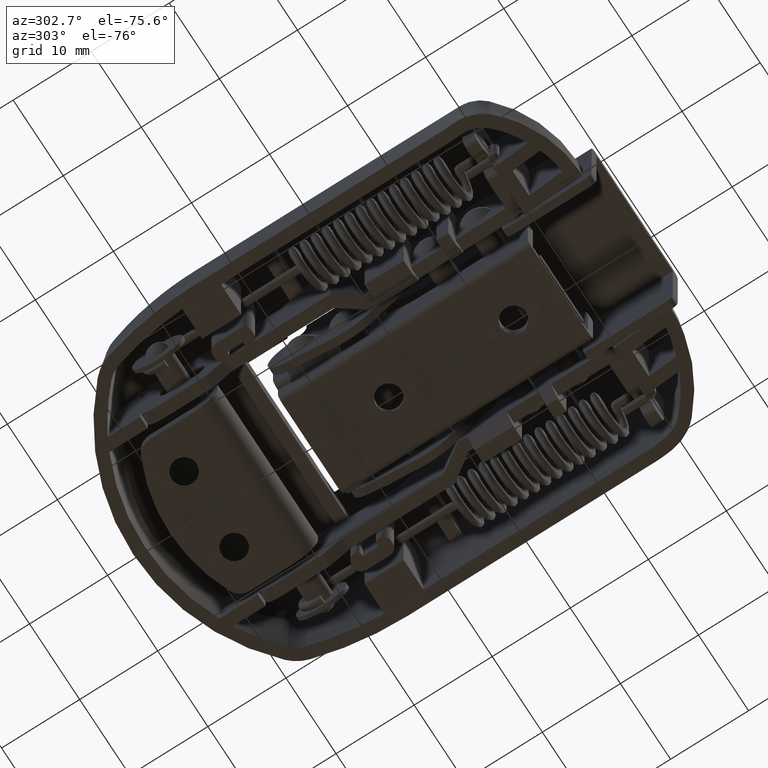
[diagram: clean part render]
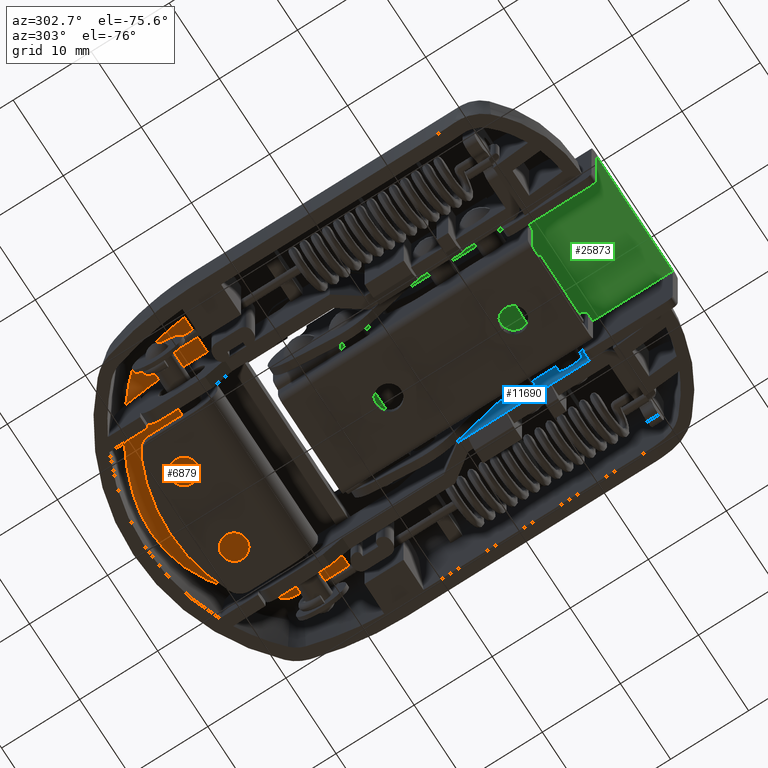
[diagram: same view with three faces highlighted in distinct colors, each labeled with its STEP entity id]
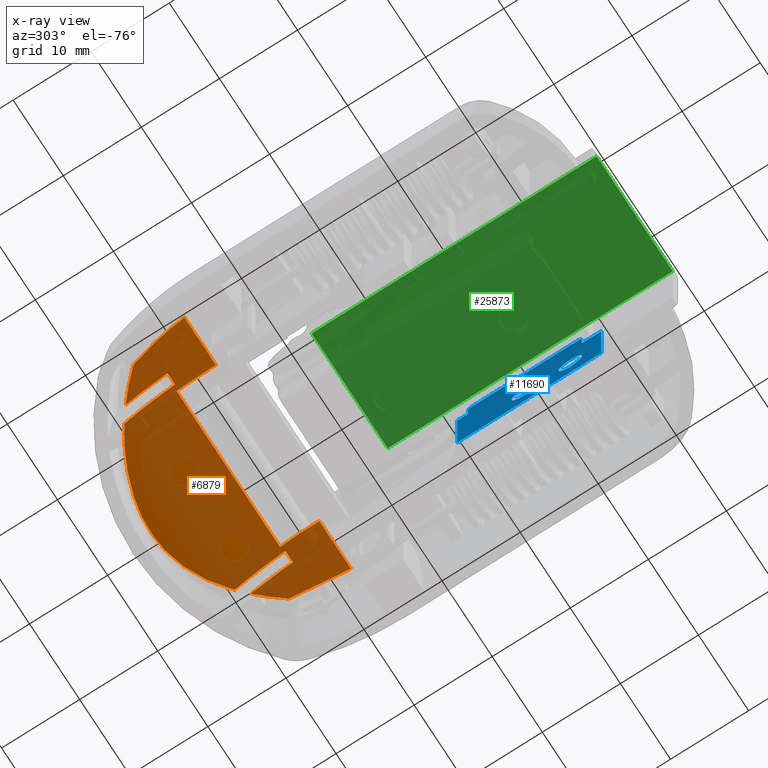
[diagram: x-ray of the same camera — body ghosted, the three highlighted faces saturated]
A machine part, auxiliary view with three faces highlighted in distinct colors.
The next image is the same camera in x-ray (body ghosted, the three faces saturated) — at least one of them is partly hidden behind the body in this view.
Their STEP definitions:

[orange] entity #6879 — the highlighted cylindrical surface (partial cylindrical patch) has radius 18.5 mm, axis along (1, 0, 0).
#43 = CARTESIAN_POINT ( 'NONE',  ( -15.48280324670634100, 52.19067634615449000, -2.954387487245519600 ) ) ;
#245 = CARTESIAN_POINT ( 'NONE',  ( -16.61382878402735800, 45.00000000000000000, -1.500000000000001300 ) ) ;
#286 = CARTESIAN_POINT ( 'NONE',  ( 15.50160346016275300, 52.10439492127594000, -2.918502032826612700 ) ) ;
#287 = CARTESIAN_POINT ( 'NONE',  ( 0.5218743642224695800, 59.91816782484296800, -9.059311748555972000 ) ) ;
#353 = CIRCLE ( 'NONE', #6522, 18.50000000000000400 ) ;
#375 = CARTESIAN_POINT ( 'NONE',  ( -10.61306972115204600, 56.56884765888347700, -5.559508198463396100 ) ) ;
#561 = CARTESIAN_POINT ( 'NONE',  ( 13.52146566679425100, 54.31457960188673400, -3.984106299900881200 ) ) ;
#688 = B_SPLINE_CURVE_WITH_KNOTS ( 'NONE', 3,
 ( #4687, #14949, #561, #19092 ),
 .UNSPECIFIED., .F., .F.,
 ( 4, 4 ),
 ( 0.0000000000000000000, 0.004305898573004983600 ),
 .UNSPECIFIED. ) ;
#744 = CARTESIAN_POINT ( 'NONE',  ( 16.61382878402736200, 45.00000000000000000, -1.500000000000000000 ) ) ;
#1071 = AXIS2_PLACEMENT_3D ( 'NONE', #5561, #19985, #7619 ) ;
#1116 = ORIENTED_EDGE ( 'NONE', *, *, #18704, .T. ) ;
#1175 = CARTESIAN_POINT ( 'NONE',  ( -16.34124918041566900, 47.44337918842829500, -1.622279219142416200 ) ) ;
#1430 = DIRECTION ( 'NONE',  ( -1.000000000000000000, 1.927470528863119300E-016, -0.0000000000000000000 ) ) ;
#2010 = CARTESIAN_POINT ( 'NONE',  ( -21.69859469030514300, 49.80000000000014600, -2.133550996350777500 ) ) ;
#2259 = CARTESIAN_POINT ( 'NONE',  ( 9.410819536039001700, 57.33364827151172000, -6.198167039632482800 ) ) ;
#2348 = CARTESIAN_POINT ( 'NONE',  ( -1.045571550634906100, 59.92387399416514900, -9.067114513104863600 ) ) ;
#2486 = CARTESIAN_POINT ( 'NONE',  ( -10.99999999999999800, 49.79999999999999700, -2.133550996234134800 ) ) ;
#2612 = VERTEX_POINT ( 'NONE', #22142 ) ;
#2667 = B_SPLINE_CURVE_WITH_KNOTS ( 'NONE', 3,
 ( #23728, #9327, #11396, #25800, #13481, #1175, #15570, #3218 ),
 .UNSPECIFIED., .F., .F.,
 ( 4, 2, 2, 4 ),
 ( 0.0000000000000000000, 0.001858279202516515300, 0.003716558405033030600, 0.007433116810066064600 ),
 .UNSPECIFIED. ) ;
#2690 = FACE_OUTER_BOUND ( 'NONE', #5735, .T. ) ;
#2812 = CARTESIAN_POINT ( 'NONE',  ( 16.33116339996229600, 47.45186659334620300, -1.652992071109625300 ) ) ;
#3047 = ORIENTED_EDGE ( 'NONE', *, *, #17260, .F. ) ;
#3218 = CARTESIAN_POINT ( 'NONE',  ( -16.61382878402735800, 45.00000000000000000, -1.500000000000001300 ) ) ;
#3343 = ORIENTED_EDGE ( 'NONE', *, *, #8225, .F. ) ;
#3486 = EDGE_CURVE ( 'NONE', #12678, #24626, #15723, .T. ) ;
#3918 = ORIENTED_EDGE ( 'NONE', *, *, #18017, .F. ) ;
#3954 = CARTESIAN_POINT ( 'NONE',  ( -10.30000000106163000, 50.04083326445142200, -2.200000000000000600 ) ) ;
#4130 = CARTESIAN_POINT ( 'NONE',  ( -10.99999999999999600, 45.00000000000000000, -20.00000000000000000 ) ) ;
#4215 = ORIENTED_EDGE ( 'NONE', *, *, #12643, .F. ) ;
#4339 = CARTESIAN_POINT ( 'NONE',  ( 6.865501225361795100, 58.58035950449384200, -7.427918869725302500 ) ) ;
#4425 = CARTESIAN_POINT ( 'NONE',  ( -3.561094337125323900, 59.56667057569549700, -8.594610733381530900 ) ) ;
#4479 = ORIENTED_EDGE ( 'NONE', *, *, #20792, .T. ) ;
#4502 = CARTESIAN_POINT ( 'NONE',  ( -21.69859469030516400, 45.00000000000000000, -20.00000000000000000 ) ) ;
#4616 = DIRECTION ( 'NONE',  ( 1.000000000000000000, -1.927470528863120800E-016, -0.0000000000000000000 ) ) ;
#4656 = VERTEX_POINT ( 'NONE', #5523 ) ;
#4687 = CARTESIAN_POINT ( 'NONE',  ( 15.38518019879834700, 52.34069583772122800, -3.018710749237492500 ) ) ;
#4868 = CARTESIAN_POINT ( 'NONE',  ( 15.96456692951254700, 49.82963295474715400, -2.100690314413993700 ) ) ;
#5003 = VERTEX_POINT ( 'NONE', #17595 ) ;
#5340 = ORIENTED_EDGE ( 'NONE', *, *, #7163, .F. ) ;
#5523 = CARTESIAN_POINT ( 'NONE',  ( 10.29999999898361700, 50.04083326427390000, -2.200000000000000200 ) ) ;
#5561 = CARTESIAN_POINT ( 'NONE',  ( 10.29999999898361900, 45.00000000000000000, -20.00000000000000000 ) ) ;
#5735 = EDGE_LOOP ( 'NONE', ( #4215, #5340, #3918, #1116, #4479, #6066, #14311, #10726, #6991, #10266, #7521, #7179, #22559, #14090, #20834, #3047, #3343, #17043 ) ) ;
#5866 = VERTEX_POINT ( 'NONE', #9737 ) ;
#6066 = ORIENTED_EDGE ( 'NONE', *, *, #3486, .T. ) ;
#6147 = DIRECTION ( 'NONE',  ( 1.875376730785737500E-016, -1.000000000000000000, -2.625527423100032400E-015 ) ) ;
#6174 = CARTESIAN_POINT ( 'NONE',  ( 12.49999999999999600, 55.15873950123441500, -4.538757755404659200 ) ) ;
#6364 = CARTESIAN_POINT ( 'NONE',  ( 5.022184936507113800, 59.20320717019114200, -8.144231551800402300 ) ) ;
#6376 = VERTEX_POINT ( 'NONE', #9295 ) ;
#6442 = CARTESIAN_POINT ( 'NONE',  ( -5.016437316797253100, 59.20479842558970100, -8.146160923343360900 ) ) ;
#6522 = AXIS2_PLACEMENT_3D ( 'NONE', #22146, #9792, #24182 ) ;
#6549 = CARTESIAN_POINT ( 'NONE',  ( -14.47763538749938700, 53.38229323440337000, -3.468973951370654300 ) ) ;
#6813 = VERTEX_POINT ( 'NONE', #286 ) ;
#6879 = ADVANCED_FACE ( 'NONE', ( #2690 ), #7482, .F. ) ;
#6907 = CARTESIAN_POINT ( 'NONE',  ( -21.69859469030516400, 45.00000000000000000, -1.500000000000001300 ) ) ;
#6911 = CARTESIAN_POINT ( 'NONE',  ( 15.50160346016275300, 52.10439492127594000, -2.918502032826612700 ) ) ;
#6919 = EDGE_CURVE ( 'NONE', #19215, #24626, #688, .T. ) ;
#6991 = ORIENTED_EDGE ( 'NONE', *, *, #15520, .F. ) ;
#7163 = EDGE_CURVE ( 'NONE', #2612, #22489, #19426, .T. ) ;
#7179 = ORIENTED_EDGE ( 'NONE', *, *, #7938, .F. ) ;
#7228 = VECTOR ( 'NONE', #20363, 1000.000000000000000 ) ;
#7263 = VERTEX_POINT ( 'NONE', #245 ) ;
#7482 = CYLINDRICAL_SURFACE ( 'NONE', #11329, 18.50000000000000000 ) ;
#7521 = ORIENTED_EDGE ( 'NONE', *, *, #11392, .F. ) ;
#7619 = DIRECTION ( 'NONE',  ( 1.875376730785737500E-016, -1.000000000000000000, -3.563215788492901300E-015 ) ) ;
#7730 = CARTESIAN_POINT ( 'NONE',  ( -15.38518019879834700, 52.34069583772122800, -3.018710749237492500 ) ) ;
#7855 = VERTEX_POINT ( 'NONE', #7730 ) ;
#7922 = DIRECTION ( 'NONE',  ( 1.000000000000000000, -3.368395098976692700E-016, 0.0000000000000000000 ) ) ;
#7937 = CARTESIAN_POINT ( 'NONE',  ( 15.38518019879834700, 52.34069583772122800, -3.018710749237492500 ) ) ;
#7938 = EDGE_CURVE ( 'NONE', #18319, #4656, #11384, .T. ) ;
#8033 = AXIS2_PLACEMENT_3D ( 'NONE', #4130, #18527, #6147 ) ;
#8197 = CARTESIAN_POINT ( 'NONE',  ( -15.38518019879834700, 52.34069583772122800, -3.018710749237492500 ) ) ;
#8225 = EDGE_CURVE ( 'NONE', #5003, #7855, #11590, .T. ) ;
#8429 = CARTESIAN_POINT ( 'NONE',  ( 3.567814254498795600, 59.56521249703881400, -8.592753154688132600 ) ) ;
#8531 = CARTESIAN_POINT ( 'NONE',  ( -6.852490527715947800, 58.58549006815795200, -7.433538217895243600 ) ) ;
#8894 = DIRECTION ( 'NONE',  ( 1.000000000000000000, -0.0000000000000000000, -0.0000000000000000000 ) ) ;
#9014 = EDGE_CURVE ( 'NONE', #6813, #19215, #24438, .T. ) ;
#9151 = VECTOR ( 'NONE', #8894, 1000.000000000000000 ) ;
#9295 = CARTESIAN_POINT ( 'NONE',  ( -15.50160346016276100, 52.10439492127591200, -2.918502032826602500 ) ) ;
#9327 = CARTESIAN_POINT ( 'NONE',  ( -15.62384221989275800, 51.54339414384628500, -2.685175243708799500 ) ) ;
#9737 = CARTESIAN_POINT ( 'NONE',  ( -10.30000000106163100, 45.00000000000000000, -1.500000000000001300 ) ) ;
#9792 = DIRECTION ( 'NONE',  ( -1.000000000000000000, -1.927470528863119300E-016, -0.0000000000000000000 ) ) ;
#10266 = ORIENTED_EDGE ( 'NONE', *, *, #14823, .F. ) ;
#10523 = CARTESIAN_POINT ( 'NONE',  ( 2.070999990632107000, 59.80853557934983700, -8.911123153178657200 ) ) ;
#10607 = CARTESIAN_POINT ( 'NONE',  ( -8.991241971607058400, 57.55097068750095000, -6.405358104243518400 ) ) ;
#10726 = ORIENTED_EDGE ( 'NONE', *, *, #9014, .F. ) ;
#11329 = AXIS2_PLACEMENT_3D ( 'NONE', #4502, #23027, #20962 ) ;
#11384 = LINE ( 'NONE', #20288, #26512 ) ;
#11392 = EDGE_CURVE ( 'NONE', #4656, #11551, #15503, .T. ) ;
#11396 = CARTESIAN_POINT ( 'NONE',  ( -15.74079107033613000, 50.96885582070567700, -2.478838343380499200 ) ) ;
#11397 = EDGE_CURVE ( 'NONE', #20622, #5003, #353, .T. ) ;
#11551 = VERTEX_POINT ( 'NONE', #16208 ) ;
#11590 = B_SPLINE_CURVE_WITH_KNOTS ( 'NONE', 3,
 ( #14775, #22936, #6549, #20973 ),
 .UNSPECIFIED., .F., .F.,
 ( 4, 4 ),
 ( 0.03321156973687945000, 0.03752879090988715100 ),
 .UNSPECIFIED. ) ;
#12265 = CARTESIAN_POINT ( 'NONE',  ( -10.30000000106163100, 45.00000000000000000, -20.00000000000000000 ) ) ;
#12301 = VECTOR ( 'NONE', #19498, 1000.000000000000000 ) ;
#12427 = CARTESIAN_POINT ( 'NONE',  ( 11.00000000000055800, 56.29911971473136800, -5.351454213056883600 ) ) ;
#12589 = CIRCLE ( 'NONE', #21308, 18.50000000000000400 ) ;
#12594 = CARTESIAN_POINT ( 'NONE',  ( 1.043546045331402300, 59.89475589897836700, -9.027459848543959000 ) ) ;
#12643 = EDGE_CURVE ( 'NONE', #22489, #20622, #23664, .T. ) ;
#12678 = VERTEX_POINT ( 'NONE', #16331 ) ;
#12690 = CARTESIAN_POINT ( 'NONE',  ( -10.21757650307641900, 56.82649906325646300, -5.770143786709448700 ) ) ;
#13063 = CARTESIAN_POINT ( 'NONE',  ( 16.55471606973998900, 45.61708670610254800, -1.499999999999999800 ) ) ;
#13174 = EDGE_CURVE ( 'NONE', #7263, #5866, #20124, .T. ) ;
#13481 = CARTESIAN_POINT ( 'NONE',  ( -16.06088026842151700, 49.22107232529968700, -1.977854479446923700 ) ) ;
#13575 = VERTEX_POINT ( 'NONE', #16117 ) ;
#13742 = CARTESIAN_POINT ( 'NONE',  ( 12.50000000000000000, 45.00000000000000000, -20.00000000000000000 ) ) ;
#14090 = ORIENTED_EDGE ( 'NONE', *, *, #13174, .F. ) ;
#14195 = AXIS2_PLACEMENT_3D ( 'NONE', #13742, #1430, #15827 ) ;
#14198 = B_SPLINE_CURVE_WITH_KNOTS ( 'NONE', 3,
 ( #12427, #16586, #2259, #16674, #4339, #18729, #6364, #20800, #8429, #22845, #10523, #24917, #12594, #287, #14681, #2348, #16755, #4425, #18821, #6442, #20876, #8531, #22930, #10607, #25009, #12690, #375, #14767 ),
 .UNSPECIFIED., .F., .F.,
 ( 4, 2, 2, 2, 2, 2, 2, 2, 2, 2, 2, 2, 2, 4 ),
 ( 0.006351380777626272600, 0.009451256645767800200, 0.01255113251390932800, 0.01410107044798009400, 0.01565100838205085700, 0.01720094631612162400, 0.01797591528315700700, 0.01875088425019239000, 0.02185076011833392300, 0.02340069805240468600, 0.02495063598647544900, 0.02805051185461698800, 0.02960044978868775500, 0.03115038772275852100 ),
 .UNSPECIFIED. ) ;
#14311 = ORIENTED_EDGE ( 'NONE', *, *, #6919, .F. ) ;
#14342 = DIRECTION ( 'NONE',  ( -1.875376730785737000E-016, 1.000000000000000000, -8.064119942378668600E-015 ) ) ;
#14430 = CARTESIAN_POINT ( 'NONE',  ( -15.50160346016276100, 52.10439492127591200, -2.918502032826602500 ) ) ;
#14681 = CARTESIAN_POINT ( 'NONE',  ( 0.2582849698172149900, 59.92405981895233000, -9.067368179423223000 ) ) ;
#14767 = CARTESIAN_POINT ( 'NONE',  ( -10.99999999999999800, 56.29911971473180200, -5.351454213057219400 ) ) ;
#14775 = CARTESIAN_POINT ( 'NONE',  ( -12.49999999999999600, 55.15873950123441500, -4.538757755404660100 ) ) ;
#14823 = EDGE_CURVE ( 'NONE', #11551, #23695, #17810, .T. ) ;
#14949 = CARTESIAN_POINT ( 'NONE',  ( 14.48085776351775100, 53.37859488427234600, -3.467375223323316400 ) ) ;
#15138 = CARTESIAN_POINT ( 'NONE',  ( 16.48587779351662200, 46.23427186034918200, -1.531082253984575400 ) ) ;
#15477 = CIRCLE ( 'NONE', #24762, 18.50000000000000000 ) ;
#15503 = CIRCLE ( 'NONE', #1071, 18.50000000000000000 ) ;
#15520 = EDGE_CURVE ( 'NONE', #23695, #6813, #17021, .T. ) ;
#15570 = CARTESIAN_POINT ( 'NONE',  ( -16.49557574964272500, 46.23446159349573700, -1.500000000000002400 ) ) ;
#15723 = CIRCLE ( 'NONE', #14195, 18.50000000000000400 ) ;
#15827 = DIRECTION ( 'NONE',  ( 1.875376730785737000E-016, 1.000000000000000000, 8.064119942378668600E-015 ) ) ;
#16117 = CARTESIAN_POINT ( 'NONE',  ( 11.00000000000055800, 56.29911971473136800, -5.351454213056883600 ) ) ;
#16172 = CARTESIAN_POINT ( 'NONE',  ( 15.48279498560501600, 52.19071425953215000, -2.954403255863014400 ) ) ;
#16208 = CARTESIAN_POINT ( 'NONE',  ( 10.29999999898361700, 45.00000000000000000, -1.500000000021373100 ) ) ;
#16331 = CARTESIAN_POINT ( 'NONE',  ( 12.49999999999999600, 49.79999999999999000, -2.133550996234134800 ) ) ;
#16417 = DIRECTION ( 'NONE',  ( 1.000000000000000000, -0.0000000000000000000, -0.0000000000000000000 ) ) ;
#16434 = CARTESIAN_POINT ( 'NONE',  ( -15.44480017244234200, 52.27226945418104300, -2.989131294967186700 ) ) ;
#16538 = EDGE_CURVE ( 'NONE', #6376, #7263, #2667, .T. ) ;
#16586 = CARTESIAN_POINT ( 'NONE',  ( 10.21896191573299500, 56.84357903541548800, -5.771421569113139000 ) ) ;
#16674 = CARTESIAN_POINT ( 'NONE',  ( 7.734615455005758200, 58.20142642143834900, -7.025724945469962200 ) ) ;
#16755 = CARTESIAN_POINT ( 'NONE',  ( -2.063812269728856600, 59.83071539524196000, -8.937312044487145000 ) ) ;
#16966 = CARTESIAN_POINT ( 'NONE',  ( 11.00000000000000000, 45.00000000000000000, -20.00000000000000000 ) ) ;
#17021 = B_SPLINE_CURVE_WITH_KNOTS ( 'NONE', 3,
 ( #744, #13063, #15138, #2812, #17213, #4868, #19285, #6911 ),
 .UNSPECIFIED., .F., .F.,
 ( 4, 2, 2, 4 ),
 ( 0.0000000000000000000, 0.001858601292657658600, 0.003717202585315317200, 0.007434405170630654400 ),
 .UNSPECIFIED. ) ;
#17043 = ORIENTED_EDGE ( 'NONE', *, *, #11397, .F. ) ;
#17212 = EDGE_CURVE ( 'NONE', #5866, #18319, #12589, .T. ) ;
#17213 = CARTESIAN_POINT ( 'NONE',  ( 16.24537558423584500, 48.05230835536098500, -1.743533361345171800 ) ) ;
#17260 = EDGE_CURVE ( 'NONE', #7855, #6376, #26574, .T. ) ;
#17273 = VERTEX_POINT ( 'NONE', #24764 ) ;
#17362 = VECTOR ( 'NONE', #16417, 1000.000000000000000 ) ;
#17433 = CARTESIAN_POINT ( 'NONE',  ( -21.69859469030516400, 45.00000000000000000, -1.500000000000001300 ) ) ;
#17595 = CARTESIAN_POINT ( 'NONE',  ( -12.49999999999999600, 55.15873950123441500, -4.538757755404660100 ) ) ;
#17810 = LINE ( 'NONE', #17433, #12301 ) ;
#18017 = EDGE_CURVE ( 'NONE', #13575, #2612, #14198, .T. ) ;
#18255 = CARTESIAN_POINT ( 'NONE',  ( 15.50160346016275300, 52.10439492127594000, -2.918502032826612700 ) ) ;
#18319 = VERTEX_POINT ( 'NONE', #3954 ) ;
#18527 = DIRECTION ( 'NONE',  ( 1.000000000000000000, 1.927470528863120800E-016, 0.0000000000000000000 ) ) ;
#18704 = EDGE_CURVE ( 'NONE', #13575, #17273, #15477, .T. ) ;
#18729 = CARTESIAN_POINT ( 'NONE',  ( 5.492737481026699300, 59.05859680661515700, -7.972356719481322100 ) ) ;
#18821 = CARTESIAN_POINT ( 'NONE',  ( -4.057018523657281300, 59.45712041851588500, -8.455240653377011000 ) ) ;
#19030 = DIRECTION ( 'NONE',  ( -1.875376730785737500E-016, -1.000000000000000000, -7.126431576985802500E-015 ) ) ;
#19092 = CARTESIAN_POINT ( 'NONE',  ( 12.49999999999999600, 55.15873950123441500, -4.538757755404659200 ) ) ;
#19215 = VERTEX_POINT ( 'NONE', #24298 ) ;
#19285 = CARTESIAN_POINT ( 'NONE',  ( 15.74601354418222600, 50.98270285364191100, -2.451977173950113300 ) ) ;
#19426 = CIRCLE ( 'NONE', #8033, 18.50000000000000000 ) ;
#19498 = DIRECTION ( 'NONE',  ( 1.000000000000000000, -0.0000000000000000000, -0.0000000000000000000 ) ) ;
#19985 = DIRECTION ( 'NONE',  ( 1.000000000000000000, 1.475243170754368000E-016, -0.0000000000000000000 ) ) ;
#20124 = LINE ( 'NONE', #6907, #9151 ) ;
#20288 = CARTESIAN_POINT ( 'NONE',  ( -10.30000000106163100, 50.04083326427390700, -2.200000000000000200 ) ) ;
#20304 = CARTESIAN_POINT ( 'NONE',  ( 15.44485318572250200, 52.27220861035942100, -2.989104993313560900 ) ) ;
#20363 = DIRECTION ( 'NONE',  ( -1.000000000000000000, 0.0000000000000000000, 0.0000000000000000000 ) ) ;
#20622 = VERTEX_POINT ( 'NONE', #26305 ) ;
#20792 = EDGE_CURVE ( 'NONE', #17273, #12678, #22793, .T. ) ;
#20800 = CARTESIAN_POINT ( 'NONE',  ( 4.056806765114065300, 59.45725531663632100, -8.455386185485242100 ) ) ;
#20834 = ORIENTED_EDGE ( 'NONE', *, *, #16538, .F. ) ;
#20876 = CARTESIAN_POINT ( 'NONE',  ( -5.483170712864024100, 59.06162536198254300, -7.975917178115892600 ) ) ;
#20962 = DIRECTION ( 'NONE',  ( 0.0000000000000000000, 0.0000000000000000000, -1.000000000000000000 ) ) ;
#20973 = CARTESIAN_POINT ( 'NONE',  ( -15.38518019879834700, 52.34069583772122800, -3.018710749237492500 ) ) ;
#21308 = AXIS2_PLACEMENT_3D ( 'NONE', #12265, #26668, #14342 ) ;
#22142 = CARTESIAN_POINT ( 'NONE',  ( -10.99999999999999800, 56.29911971473180200, -5.351454213057219400 ) ) ;
#22146 = CARTESIAN_POINT ( 'NONE',  ( -12.49999999999999500, 45.00000000000000000, -20.00000000000000000 ) ) ;
#22489 = VERTEX_POINT ( 'NONE', #2486 ) ;
#22559 = ORIENTED_EDGE ( 'NONE', *, *, #17212, .F. ) ;
#22793 = LINE ( 'NONE', #2010, #17362 ) ;
#22845 = CARTESIAN_POINT ( 'NONE',  ( 2.574914716533631700, 59.74085070023463800, -8.820643296362449700 ) ) ;
#22930 = CARTESIAN_POINT ( 'NONE',  ( -7.724689097741527500, 58.20635339618266400, -7.030541882383974300 ) ) ;
#22936 = CARTESIAN_POINT ( 'NONE',  ( -13.51796599710891700, 54.31747179974062300, -3.986006605459699000 ) ) ;
#23027 = DIRECTION ( 'NONE',  ( 1.000000000000000000, -0.0000000000000000000, -0.0000000000000000000 ) ) ;
#23664 = LINE ( 'NONE', #24394, #7228 ) ;
#23695 = VERTEX_POINT ( 'NONE', #26481 ) ;
#23728 = CARTESIAN_POINT ( 'NONE',  ( -15.50160346016276100, 52.10439492127591200, -2.918502032826602500 ) ) ;
#24182 = DIRECTION ( 'NONE',  ( -1.875376730785737000E-016, 1.000000000000000000, 8.064119942378668600E-015 ) ) ;
#24298 = CARTESIAN_POINT ( 'NONE',  ( 15.38518019879834700, 52.34069583772122800, -3.018710749237492500 ) ) ;
#24394 = CARTESIAN_POINT ( 'NONE',  ( -21.69859469030518500, 49.79999999999994700, -2.133550996350722000 ) ) ;
#24438 = B_SPLINE_CURVE_WITH_KNOTS ( 'NONE', 3,
 ( #18255, #16172, #20304, #7937 ),
 .UNSPECIFIED., .F., .F.,
 ( 4, 4 ),
 ( 0.0000000000000000000, 0.0002852177510835172600 ),
 .UNSPECIFIED. ) ;
#24626 = VERTEX_POINT ( 'NONE', #6174 ) ;
#24762 = AXIS2_PLACEMENT_3D ( 'NONE', #16966, #4616, #19030 ) ;
#24764 = CARTESIAN_POINT ( 'NONE',  ( 11.00000000000000200, 49.79999999999999700, -2.133550996350735800 ) ) ;
#24917 = CARTESIAN_POINT ( 'NONE',  ( 1.302045521970879100, 59.87730347749364800, -9.003758816269742800 ) ) ;
#25009 = CARTESIAN_POINT ( 'NONE',  ( -9.407196507545037900, 57.31732027485827500, -6.192809511320013400 ) ) ;
#25800 = CARTESIAN_POINT ( 'NONE',  ( -15.95928069638565300, 49.80765192901463900, -2.125302001566374600 ) ) ;
#26305 = CARTESIAN_POINT ( 'NONE',  ( -12.49999999999999600, 49.79999999999999000, -2.133550996234134800 ) ) ;
#26481 = CARTESIAN_POINT ( 'NONE',  ( 16.61382878402736200, 45.00000000000000000, -1.500000000000000000 ) ) ;
#26512 = VECTOR ( 'NONE', #7922, 1000.000000000000000 ) ;
#26574 = B_SPLINE_CURVE_WITH_KNOTS ( 'NONE', 3,
 ( #8197, #16434, #43, #14430 ),
 .UNSPECIFIED., .F., .F.,
 ( 4, 4 ),
 ( 0.0000000000000000000, 0.0002852244425579527300 ),
 .UNSPECIFIED. ) ;
#26668 = DIRECTION ( 'NONE',  ( -1.000000000000000000, -1.475258908606019200E-016, 0.0000000000000000000 ) ) ;

[blue] entity #11690 — the highlighted planar face has unit normal (1, 0, 0).
#21 = FACE_BOUND ( 'NONE', #20646, .T. ) ;
#35 = AXIS2_PLACEMENT_3D ( 'NONE', #15972, #3615, #18037 ) ;
#1201 = DIRECTION ( 'NONE',  ( -1.000000000000000000, 0.0000000000000000000, -0.0000000000000000000 ) ) ;
#1291 = EDGE_CURVE ( 'NONE', #12402, #13678, #3458, .T. ) ;
#1313 = CARTESIAN_POINT ( 'NONE',  ( 8.800000000000000700, 5.500000000000000000, 5.500000000000001800 ) ) ;
#1329 = ORIENTED_EDGE ( 'NONE', *, *, #6934, .T. ) ;
#1332 = FACE_OUTER_BOUND ( 'NONE', #15037, .T. ) ;
#1417 = VECTOR ( 'NONE', #21147, 1000.000000000000000 ) ;
#2040 = LINE ( 'NONE', #8798, #1417 ) ;
#2067 = PLANE ( 'NONE',  #24488 ) ;
#2080 = VECTOR ( 'NONE', #21398, 1000.000000000000000 ) ;
#2114 = AXIS2_PLACEMENT_3D ( 'NONE', #21099, #8745, #23156 ) ;
#2226 = CARTESIAN_POINT ( 'NONE',  ( 8.800000000000000700, 4.000000000000000000, 11.19999999999999800 ) ) ;
#2389 = CARTESIAN_POINT ( 'NONE',  ( 8.800000000000000700, 11.50000000000000000, 2.500000000000000000 ) ) ;
#2485 = CARTESIAN_POINT ( 'NONE',  ( 8.800000000000000700, 18.10000000000000100, 11.69999999999999900 ) ) ;
#2727 = LINE ( 'NONE', #19345, #2080 ) ;
#2983 = DIRECTION ( 'NONE',  ( -1.000000000000000000, 0.0000000000000000000, -0.0000000000000000000 ) ) ;
#3406 = CARTESIAN_POINT ( 'NONE',  ( 8.800000000000000700, 1.499999999999998900, 0.0000000000000000000 ) ) ;
#3458 = CIRCLE ( 'NONE', #2114, 1.500000000000000400 ) ;
#3615 = DIRECTION ( 'NONE',  ( -1.000000000000000000, 0.0000000000000000000, -0.0000000000000000000 ) ) ;
#3889 = VECTOR ( 'NONE', #13360, 1000.000000000000000 ) ;
#4129 = CARTESIAN_POINT ( 'NONE',  ( 8.800000000000000700, 1.500000000000005600, 9.500000000000000000 ) ) ;
#4214 = DIRECTION ( 'NONE',  ( 0.0000000000000000000, 1.000000000000000000, 0.0000000000000000000 ) ) ;
#4396 = ORIENTED_EDGE ( 'NONE', *, *, #25361, .F. ) ;
#4737 = CARTESIAN_POINT ( 'NONE',  ( 8.800000000000000700, 19.97504980099443700, -2.000000000000000000 ) ) ;
#4811 = VERTEX_POINT ( 'NONE', #5859 ) ;
#5459 = DIRECTION ( 'NONE',  ( -0.0000000000000000000, -1.000000000000000000, 0.0000000000000000000 ) ) ;
#5730 = VERTEX_POINT ( 'NONE', #11055 ) ;
#5859 = CARTESIAN_POINT ( 'NONE',  ( 8.800000000000000700, 19.97504980099443700, 9.499999999999998200 ) ) ;
#6765 = DIRECTION ( 'NONE',  ( 0.0000000000000000000, 0.0000000000000000000, 1.000000000000000000 ) ) ;
#6881 = EDGE_LOOP ( 'NONE', ( #8504, #21015 ) ) ;
#6934 = EDGE_CURVE ( 'NONE', #14590, #24431, #2040, .T. ) ;
#7176 = CARTESIAN_POINT ( 'NONE',  ( 8.800000000000002500, 4.000000000000000000, 9.500000000000000000 ) ) ;
#7501 = ORIENTED_EDGE ( 'NONE', *, *, #22583, .T. ) ;
#8240 = DIRECTION ( 'NONE',  ( 1.000000000000000000, -0.0000000000000000000, 0.0000000000000000000 ) ) ;
#8337 = DIRECTION ( 'NONE',  ( -0.0000000000000000000, 0.0000000000000000000, 1.000000000000000000 ) ) ;
#8496 = VERTEX_POINT ( 'NONE', #24031 ) ;
#8504 = ORIENTED_EDGE ( 'NONE', *, *, #1291, .F. ) ;
#8567 = ORIENTED_EDGE ( 'NONE', *, *, #10047, .T. ) ;
#8745 = DIRECTION ( 'NONE',  ( -1.000000000000000000, 0.0000000000000000000, -0.0000000000000000000 ) ) ;
#8798 = CARTESIAN_POINT ( 'NONE',  ( 8.800000000000000700, 18.59999999999998000, -2.000000000000027100 ) ) ;
#9053 = CARTESIAN_POINT ( 'NONE',  ( 8.800000000000000700, 11.50000000000000000, 4.000000000000000000 ) ) ;
#9232 = ORIENTED_EDGE ( 'NONE', *, *, #22774, .T. ) ;
#9641 = ORIENTED_EDGE ( 'NONE', *, *, #10481, .T. ) ;
#10021 = ORIENTED_EDGE ( 'NONE', *, *, #12777, .T. ) ;
#10047 = EDGE_CURVE ( 'NONE', #24431, #4811, #10971, .T. ) ;
#10414 = CARTESIAN_POINT ( 'NONE',  ( 8.800000000000000700, 5.500000000000000000, 4.000000000000000000 ) ) ;
#10481 = EDGE_CURVE ( 'NONE', #18273, #18422, #15497, .T. ) ;
#10770 = LINE ( 'NONE', #16583, #26556 ) ;
#10971 = LINE ( 'NONE', #16087, #15835 ) ;
#11055 = CARTESIAN_POINT ( 'NONE',  ( 8.800000000000000700, 11.50000000000000000, 5.500000000000000000 ) ) ;
#11141 = DIRECTION ( 'NONE',  ( 0.0000000000000000000, 0.0000000000000000000, -1.000000000000000000 ) ) ;
#11606 = FACE_BOUND ( 'NONE', #6881, .T. ) ;
#11690 = ADVANCED_FACE ( 'NONE', ( #21, #11606, #1332 ), #2067, .F. ) ;
#12000 = ORIENTED_EDGE ( 'NONE', *, *, #19147, .T. ) ;
#12185 = VERTEX_POINT ( 'NONE', #17724 ) ;
#12260 = ORIENTED_EDGE ( 'NONE', *, *, #21171, .F. ) ;
#12280 = CIRCLE ( 'NONE', #15470, 1.500000000000000000 ) ;
#12402 = VERTEX_POINT ( 'NONE', #1313 ) ;
#12492 = DIRECTION ( 'NONE',  ( 0.0000000000000000000, 0.0000000000000000000, -1.000000000000000000 ) ) ;
#12672 = LINE ( 'NONE', #16542, #24260 ) ;
#12748 = VERTEX_POINT ( 'NONE', #20621 ) ;
#12777 = EDGE_CURVE ( 'NONE', #8496, #19943, #10770, .T. ) ;
#13360 = DIRECTION ( 'NONE',  ( -0.0000000000000000000, 0.0000000000000000000, 1.000000000000000000 ) ) ;
#13507 = CARTESIAN_POINT ( 'NONE',  ( 8.800000000000000700, 4.500000000000000900, 11.19999999999999800 ) ) ;
#13601 = LINE ( 'NONE', #4737, #23890 ) ;
#13678 = VERTEX_POINT ( 'NONE', #20514 ) ;
#14020 = AXIS2_PLACEMENT_3D ( 'NONE', #15329, #2983, #17403 ) ;
#14590 = VERTEX_POINT ( 'NONE', #24768 ) ;
#15037 = EDGE_LOOP ( 'NONE', ( #9641, #26669, #7501, #12000, #1329, #8567, #4396, #9232, #10021, #21851 ) ) ;
#15126 = CIRCLE ( 'NONE', #35, 0.5000000000000004400 ) ;
#15329 = CARTESIAN_POINT ( 'NONE',  ( 8.800000000000000700, 11.50000000000000000, 4.000000000000000000 ) ) ;
#15470 = AXIS2_PLACEMENT_3D ( 'NONE', #9053, #23456, #11141 ) ;
#15497 = LINE ( 'NONE', #21634, #3889 ) ;
#15598 = DIRECTION ( 'NONE',  ( 0.0000000000000000000, 0.0000000000000000000, -1.000000000000000000 ) ) ;
#15698 = EDGE_CURVE ( 'NONE', #18422, #12748, #24812, .T. ) ;
#15835 = VECTOR ( 'NONE', #18148, 1000.000000000000000 ) ;
#15972 = CARTESIAN_POINT ( 'NONE',  ( 8.800000000000002500, 18.10000000000000100, 11.19999999999999800 ) ) ;
#16087 = CARTESIAN_POINT ( 'NONE',  ( 8.800000000000000700, 1.499999999999998900, 9.499999999999998200 ) ) ;
#16391 = EDGE_CURVE ( 'NONE', #5730, #20080, #12280, .T. ) ;
#16542 = CARTESIAN_POINT ( 'NONE',  ( 8.800000000000000700, 1.499999999999998900, 9.500000000000000000 ) ) ;
#16583 = CARTESIAN_POINT ( 'NONE',  ( 8.800000000000000700, 1.500000000000005600, 9.500000000000000000 ) ) ;
#17015 = CIRCLE ( 'NONE', #14020, 1.500000000000000000 ) ;
#17403 = DIRECTION ( 'NONE',  ( 0.0000000000000000000, 0.0000000000000000000, -1.000000000000000000 ) ) ;
#17724 = CARTESIAN_POINT ( 'NONE',  ( 8.800000000000000700, 19.97504980099443700, 0.0000000000000000000 ) ) ;
#18037 = DIRECTION ( 'NONE',  ( 0.0000000000000000000, 0.0000000000000000000, -1.000000000000000000 ) ) ;
#18148 = DIRECTION ( 'NONE',  ( 0.0000000000000000000, 1.000000000000000000, 0.0000000000000000000 ) ) ;
#18273 = VERTEX_POINT ( 'NONE', #7176 ) ;
#18422 = VERTEX_POINT ( 'NONE', #2226 ) ;
#18924 = AXIS2_PLACEMENT_3D ( 'NONE', #10414, #24811, #12492 ) ;
#19147 = EDGE_CURVE ( 'NONE', #25286, #14590, #15126, .T. ) ;
#19345 = CARTESIAN_POINT ( 'NONE',  ( 8.800000000000000700, 0.0000000000000000000, 11.69999999999999900 ) ) ;
#19943 = VERTEX_POINT ( 'NONE', #4129 ) ;
#20080 = VERTEX_POINT ( 'NONE', #2389 ) ;
#20514 = CARTESIAN_POINT ( 'NONE',  ( 8.800000000000000700, 5.500000000000000000, 2.499999999999999100 ) ) ;
#20600 = CARTESIAN_POINT ( 'NONE',  ( 8.800000000000000700, 1.499999999999998900, -2.000000000000000000 ) ) ;
#20621 = CARTESIAN_POINT ( 'NONE',  ( 8.800000000000000700, 4.500000000000000900, 11.69999999999999900 ) ) ;
#20646 = EDGE_LOOP ( 'NONE', ( #25048, #12260 ) ) ;
#20736 = LINE ( 'NONE', #3406, #25566 ) ;
#21015 = ORIENTED_EDGE ( 'NONE', *, *, #24641, .F. ) ;
#21099 = CARTESIAN_POINT ( 'NONE',  ( 8.800000000000000700, 5.500000000000000000, 4.000000000000000000 ) ) ;
#21147 = DIRECTION ( 'NONE',  ( 0.0000000000000000000, -1.577021341797097200E-015, -1.000000000000000000 ) ) ;
#21171 = EDGE_CURVE ( 'NONE', #20080, #5730, #17015, .T. ) ;
#21398 = DIRECTION ( 'NONE',  ( 0.0000000000000000000, 1.000000000000000000, 0.0000000000000000000 ) ) ;
#21634 = CARTESIAN_POINT ( 'NONE',  ( 8.800000000000000700, 4.000000000000000000, -2.000000000000000000 ) ) ;
#21851 = ORIENTED_EDGE ( 'NONE', *, *, #22922, .T. ) ;
#21991 = AXIS2_PLACEMENT_3D ( 'NONE', #13507, #1201, #15598 ) ;
#22061 = CARTESIAN_POINT ( 'NONE',  ( 8.800000000000002500, 18.59999999999999800, 9.499999999999998200 ) ) ;
#22583 = EDGE_CURVE ( 'NONE', #12748, #25286, #2727, .T. ) ;
#22657 = DIRECTION ( 'NONE',  ( 0.0000000000000000000, 0.0000000000000000000, -1.000000000000000000 ) ) ;
#22774 = EDGE_CURVE ( 'NONE', #12185, #8496, #20736, .T. ) ;
#22922 = EDGE_CURVE ( 'NONE', #19943, #18273, #12672, .T. ) ;
#23156 = DIRECTION ( 'NONE',  ( 0.0000000000000000000, 0.0000000000000000000, -1.000000000000000000 ) ) ;
#23456 = DIRECTION ( 'NONE',  ( -1.000000000000000000, 0.0000000000000000000, -0.0000000000000000000 ) ) ;
#23890 = VECTOR ( 'NONE', #6765, 1000.000000000000000 ) ;
#24031 = CARTESIAN_POINT ( 'NONE',  ( 8.800000000000000700, 1.500000000000005600, 0.0000000000000000000 ) ) ;
#24260 = VECTOR ( 'NONE', #4214, 1000.000000000000000 ) ;
#24431 = VERTEX_POINT ( 'NONE', #22061 ) ;
#24488 = AXIS2_PLACEMENT_3D ( 'NONE', #20600, #8240, #22657 ) ;
#24555 = CIRCLE ( 'NONE', #18924, 1.500000000000000400 ) ;
#24641 = EDGE_CURVE ( 'NONE', #13678, #12402, #24555, .T. ) ;
#24768 = CARTESIAN_POINT ( 'NONE',  ( 8.800000000000000700, 18.60000000000000100, 11.19999999999999800 ) ) ;
#24811 = DIRECTION ( 'NONE',  ( -1.000000000000000000, 0.0000000000000000000, -0.0000000000000000000 ) ) ;
#24812 = CIRCLE ( 'NONE', #21991, 0.5000000000000004400 ) ;
#25048 = ORIENTED_EDGE ( 'NONE', *, *, #16391, .F. ) ;
#25286 = VERTEX_POINT ( 'NONE', #2485 ) ;
#25361 = EDGE_CURVE ( 'NONE', #12185, #4811, #13601, .T. ) ;
#25566 = VECTOR ( 'NONE', #5459, 1000.000000000000000 ) ;
#26556 = VECTOR ( 'NONE', #8337, 1000.000000000000000 ) ;
#26669 = ORIENTED_EDGE ( 'NONE', *, *, #15698, .T. ) ;

[green] entity #25873 — the highlighted planar face has unit normal (0, 0, -1).
#464 = VECTOR ( 'NONE', #5225, 1000.000000000000000 ) ;
#725 = LINE ( 'NONE', #23516, #21309 ) ;
#872 = VECTOR ( 'NONE', #1599, 1000.000000000000000 ) ;
#1415 = EDGE_CURVE ( 'NONE', #20327, #8926, #6969, .T. ) ;
#1539 = VECTOR ( 'NONE', #11014, 1000.000000000000000 ) ;
#1599 = DIRECTION ( 'NONE',  ( 0.0000000000000000000, -1.000000000000000000, -7.129000586206058500E-017 ) ) ;
#1822 = DIRECTION ( 'NONE',  ( 0.0000000000000000000, 1.000000000000000000, 7.129000586206058500E-017 ) ) ;
#2064 = EDGE_CURVE ( 'NONE', #15968, #12982, #6287, .T. ) ;
#2605 = CARTESIAN_POINT ( 'NONE',  ( 7.599999999999999600, -37.50000000000000000, 6.699999999999995700 ) ) ;
#3162 = CARTESIAN_POINT ( 'NONE',  ( 8.599999999999999600, -37.50000000000000000, 6.699999999999995700 ) ) ;
#4333 = FACE_OUTER_BOUND ( 'NONE', #20863, .T. ) ;
#5225 = DIRECTION ( 'NONE',  ( -1.000000000000000000, 0.0000000000000000000, 0.0000000000000000000 ) ) ;
#6287 = LINE ( 'NONE', #21635, #872 ) ;
#6535 = LINE ( 'NONE', #3162, #464 ) ;
#6969 = LINE ( 'NONE', #23247, #1539 ) ;
#7884 = ORIENTED_EDGE ( 'NONE', *, *, #25511, .F. ) ;
#8926 = VERTEX_POINT ( 'NONE', #2605 ) ;
#9968 = CARTESIAN_POINT ( 'NONE',  ( -7.599999999999999600, -1.000000000000000900, 6.699999999999998400 ) ) ;
#9973 = PLANE ( 'NONE',  #15511 ) ;
#11014 = DIRECTION ( 'NONE',  ( 0.0000000000000000000, -1.000000000000000000, -7.129000586206058500E-017 ) ) ;
#12982 = VERTEX_POINT ( 'NONE', #16756 ) ;
#13296 = EDGE_CURVE ( 'NONE', #8926, #12982, #6535, .T. ) ;
#13384 = ORIENTED_EDGE ( 'NONE', *, *, #2064, .F. ) ;
#13554 = ORIENTED_EDGE ( 'NONE', *, *, #1415, .T. ) ;
#14124 = DIRECTION ( 'NONE',  ( 0.0000000000000000000, 7.129000586206058500E-017, -1.000000000000000000 ) ) ;
#15058 = ORIENTED_EDGE ( 'NONE', *, *, #13296, .T. ) ;
#15511 = AXIS2_PLACEMENT_3D ( 'NONE', #16129, #14124, #1822 ) ;
#15968 = VERTEX_POINT ( 'NONE', #9968 ) ;
#16129 = CARTESIAN_POINT ( 'NONE',  ( 8.599999999999999600, -1.000000000000000900, 6.699999999999998400 ) ) ;
#16756 = CARTESIAN_POINT ( 'NONE',  ( -7.599999999999999600, -37.50000000000000000, 6.699999999999995700 ) ) ;
#17438 = DIRECTION ( 'NONE',  ( -1.000000000000000000, 0.0000000000000000000, 0.0000000000000000000 ) ) ;
#19405 = CARTESIAN_POINT ( 'NONE',  ( 7.599999999999999600, -1.000000000000000900, 6.699999999999998400 ) ) ;
#20327 = VERTEX_POINT ( 'NONE', #19405 ) ;
#20863 = EDGE_LOOP ( 'NONE', ( #13384, #7884, #13554, #15058 ) ) ;
#21309 = VECTOR ( 'NONE', #17438, 1000.000000000000000 ) ;
#21635 = CARTESIAN_POINT ( 'NONE',  ( -7.599999999999998800, -1.000000000000000900, 6.699999999999998400 ) ) ;
#23247 = CARTESIAN_POINT ( 'NONE',  ( 7.599999999999999600, -1.000000000000000900, 6.699999999999998400 ) ) ;
#23516 = CARTESIAN_POINT ( 'NONE',  ( 8.599999999999999600, -1.000000000000000900, 6.699999999999998400 ) ) ;
#25511 = EDGE_CURVE ( 'NONE', #20327, #15968, #725, .T. ) ;
#25873 = ADVANCED_FACE ( 'NONE', ( #4333 ), #9973, .T. ) ;